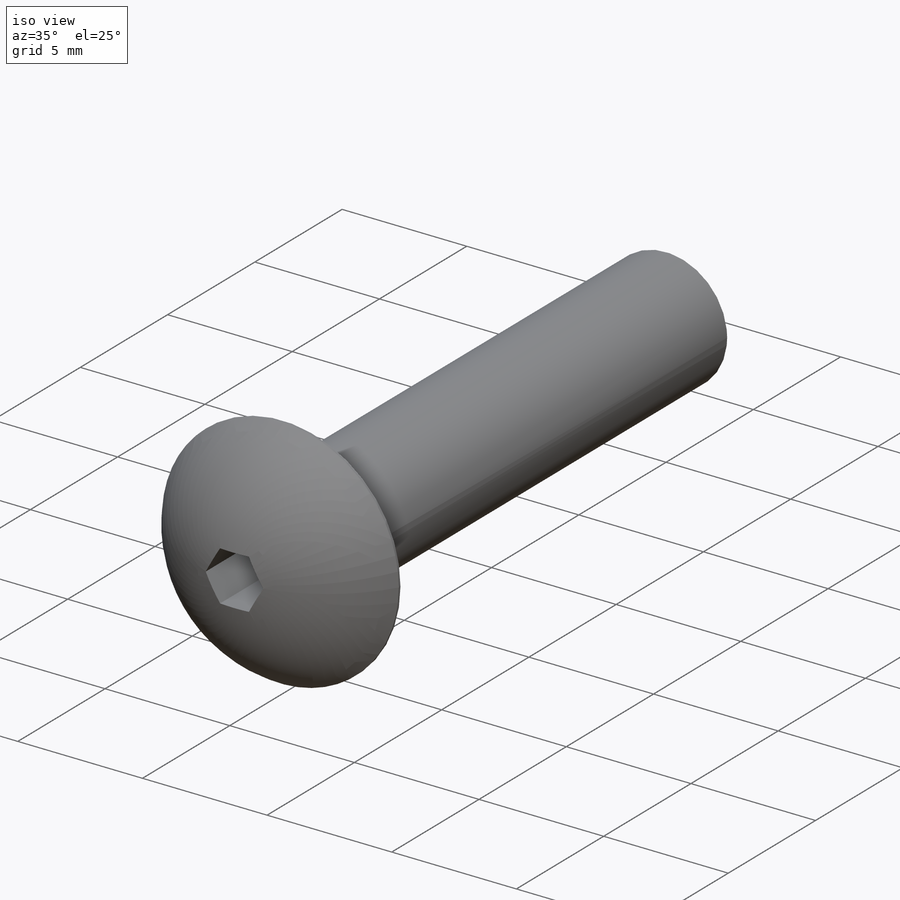
[diagram: iso view]
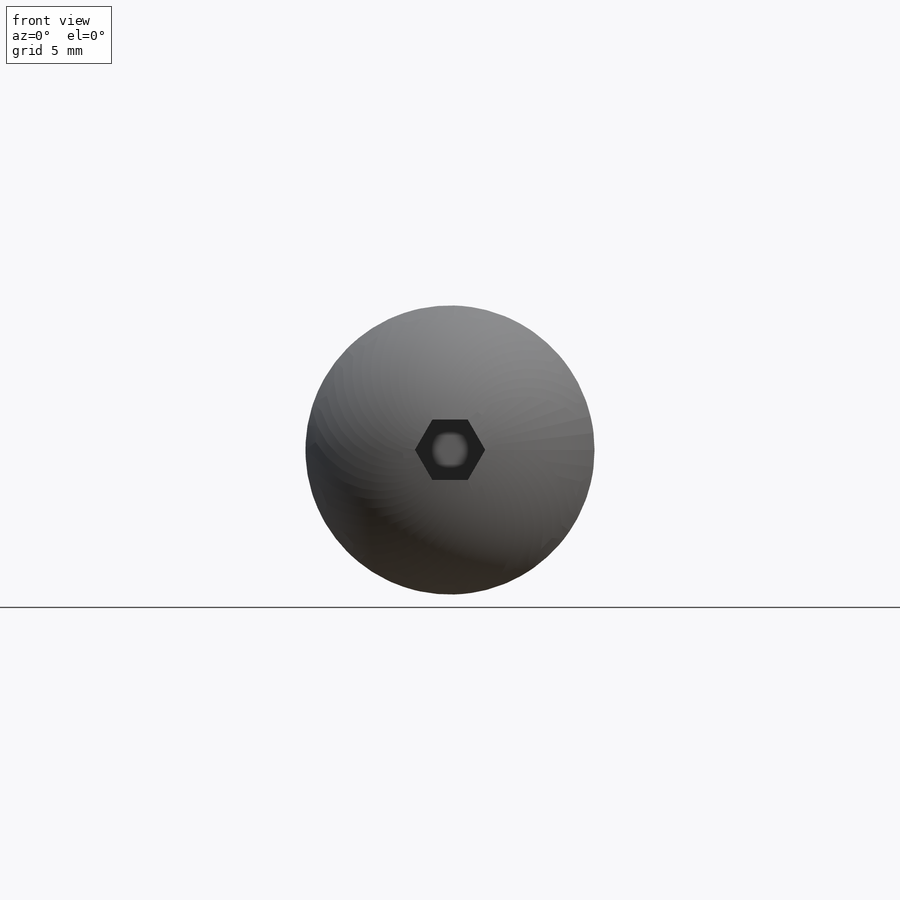
[diagram: front view]
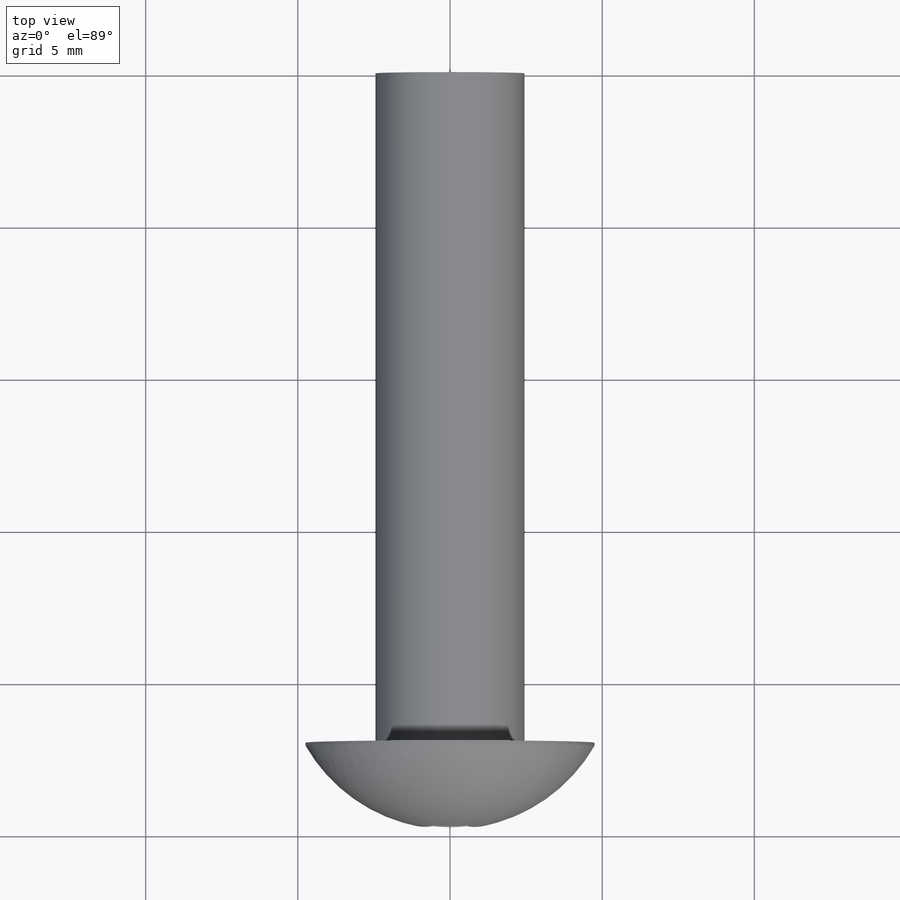
[diagram: top view]
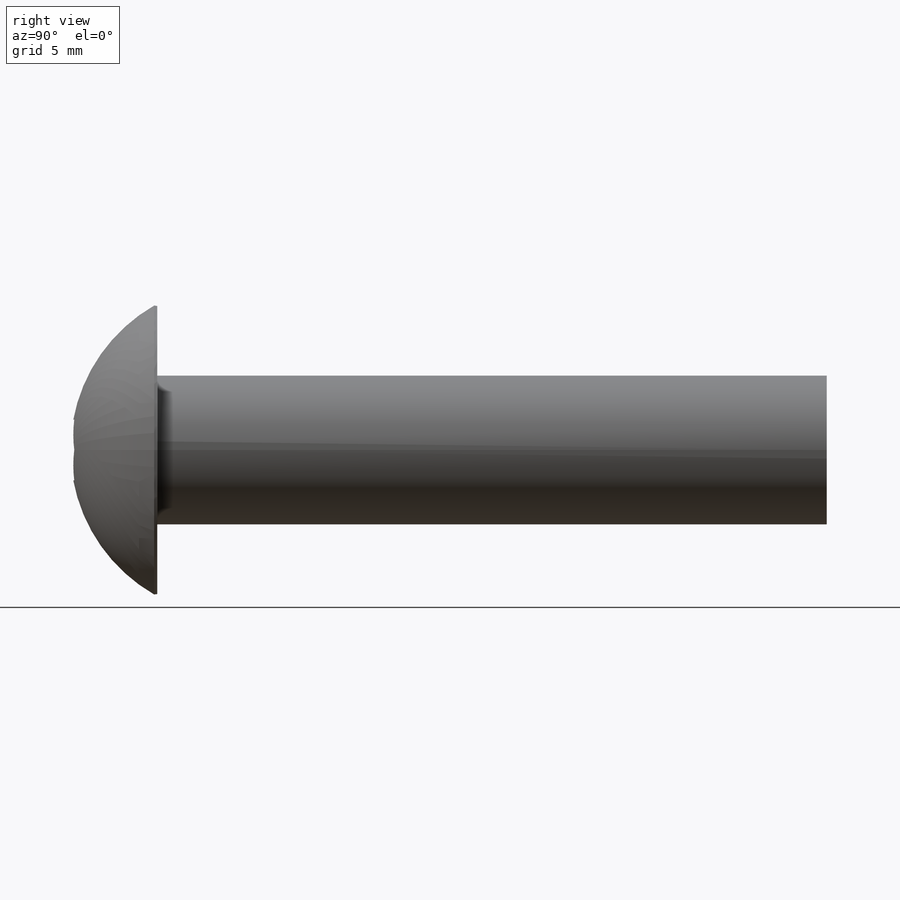
[diagram: right view]
SOLIDWORKS PART (.sldprt)
format: sldprt  version: not decoded by parser v0  size: 522,240 bytes
history: native  units: mm
features: sketch x3, extrude x2, dome x2, material x1, thread x1, cut_extrude x1 (+11 scaffold rows collapsed)
feature tree (21):
  scaffold x11  (default folders/planes/origin — collapsed)
  material  "Material <not specified>"
  sketch  "Sketch1"  dims[D1=2.9mm]
  extrude  "Boss-Shaft"  [1 undecoded]
  thread  "Cosmetic Thread1"  Diameter=1.993mm  [1 undecoded]
  sketch  "Sketch2"  dims[D1=5.4mm]
  extrude  "Boss-Head Base"  Depth=0.1mm
  dome  "Dome-M3"
  dome  "Dome-M5"
  sketch  "Sketch3"  dims[D1=2.0mm]
  cut_extrude  "Cut-Hex"  [1 undecoded]
decode coverage: 5 of 9 modeling features carry decoded parameters
note: 3 parameter values undecoded
note: suppression state not decoded; provenance and decode notes live in map.json
